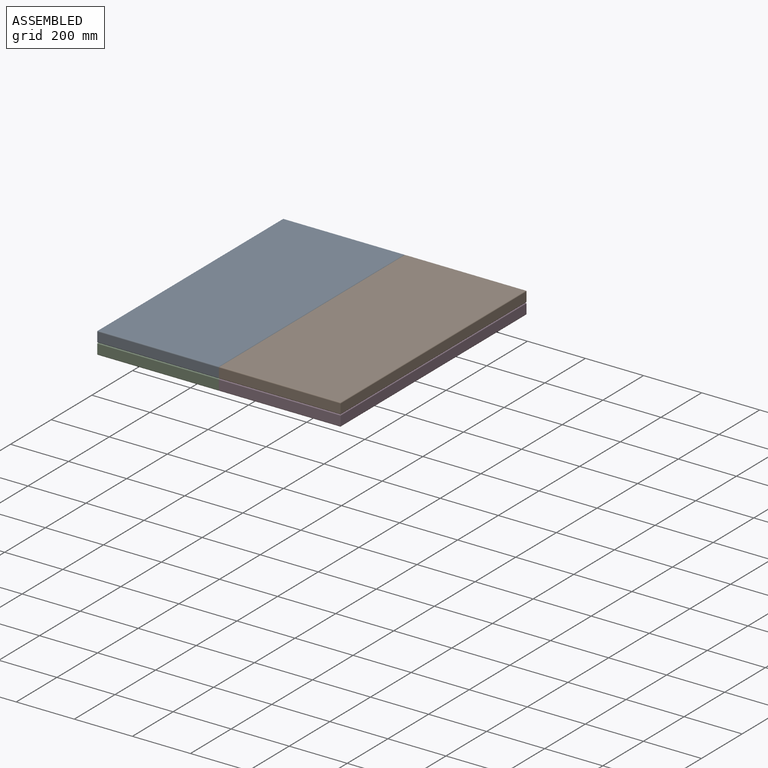
[diagram: assembled view]
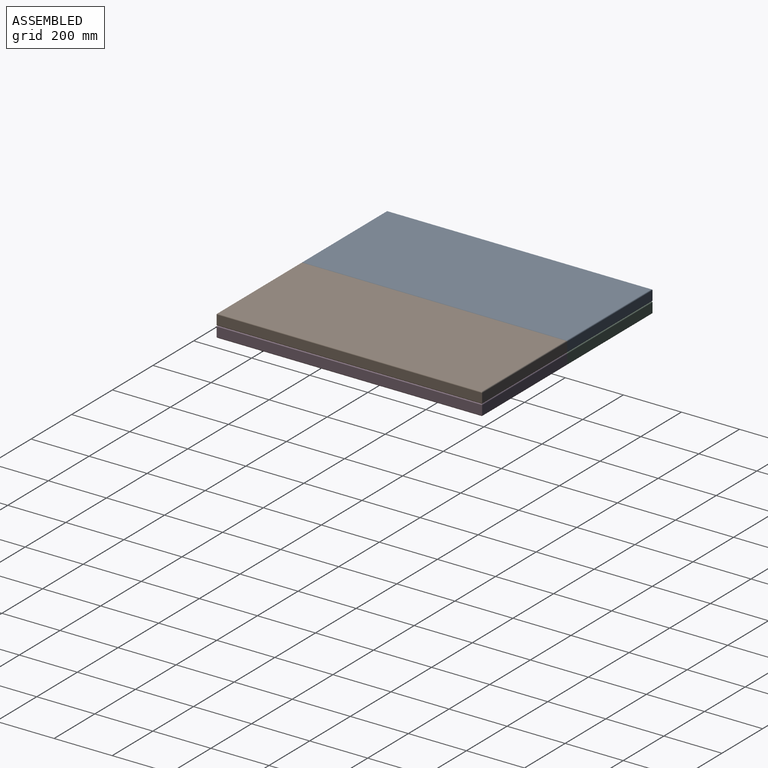
[diagram: assembled view, second angle]
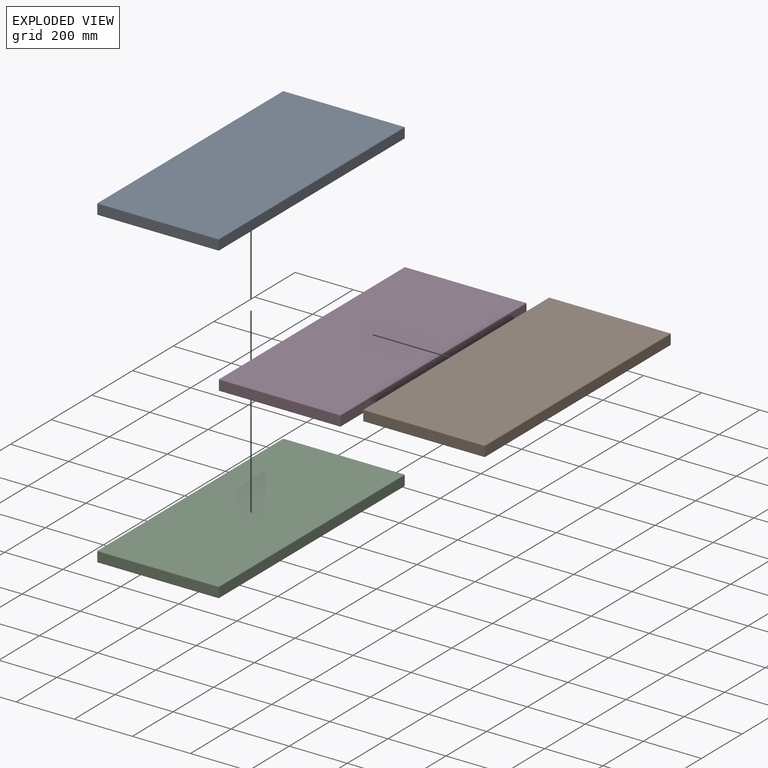
[diagram: exploded view]
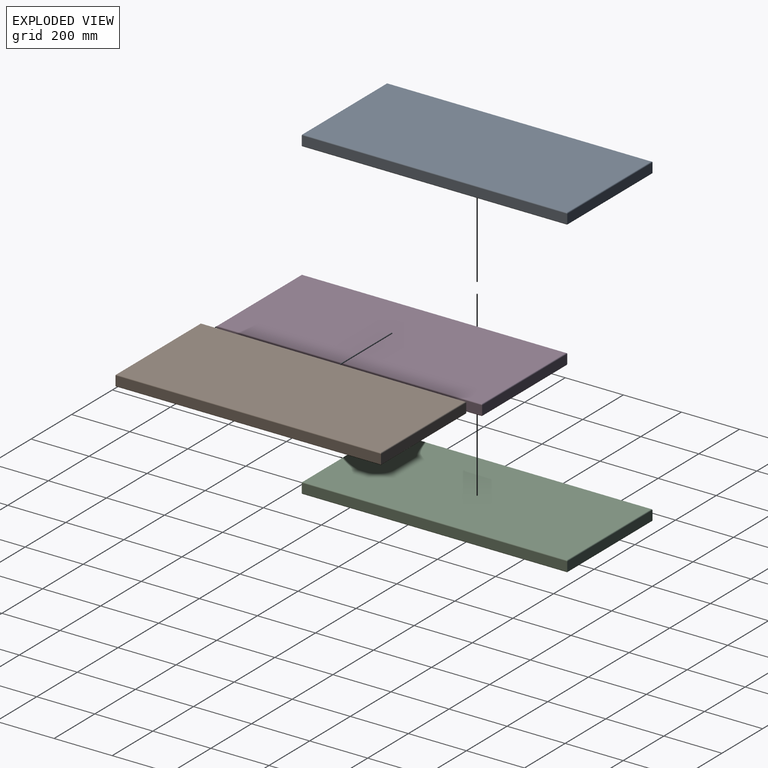
[diagram: exploded view, second angle]
ASSEMBLY  parts=4 mates=3
PART A: 14 faces, bbox 419.1x914.4x38.1 mm
  f0: plane 914.4x31.75mm, normal (-1,0,0), area 29032.2mm2, adj f1,f3,f6,f10
  f1: plane 419.1x31.75mm, normal (0,-1,0), area 13306.4mm2, adj f0,f2,f7,f11
  f2: plane 914.4x31.75mm, normal (1,0,0), area 29032.2mm2, adj f1,f3,f9,f13
  f3: plane 419.1x31.75mm, normal (0,1,0), area 13306.4mm2, adj f0,f2,f8,f12
  f4: plane 908.05x412.75mm, normal (0,0,1), area 374797.6mm2, adj f10,f11,f12,f13
  f5: plane 908.05x412.75mm, normal (0,0,-1), area 374797.6mm2, adj f6,f7,f8,f9
  f6: cylinder r=3.17mm len=914.4mm, axis (0,-1,0), area 4548.9mm2, adj f0,f5,f7,f8
  f7: cylinder r=3.17mm len=419.1mm, axis (1,0,0), area 2078.7mm2, adj f1,f5,f6,f9
  f8: cylinder r=3.17mm len=419.1mm, axis (-1,0,0), area 2078.7mm2, adj f3,f5,f6,f9
  f9: cylinder r=3.17mm len=914.4mm, axis (0,1,0), area 4548.9mm2, adj f2,f5,f7,f8
  f10: cylinder r=3.17mm len=914.4mm, axis (0,1,0), area 4548.9mm2, adj f0,f4,f11,f12
  f11: cylinder r=3.17mm len=419.1mm, axis (-1,0,0), area 2078.7mm2, adj f1,f4,f10,f13
  f12: cylinder r=3.17mm len=419.1mm, axis (1,0,0), area 2078.7mm2, adj f3,f4,f10,f13
  f13: cylinder r=3.17mm len=914.4mm, axis (0,-1,0), area 4548.9mm2, adj f2,f4,f11,f12
PART B: same geometry as A
PART C: same geometry as A
PART D: same geometry as A
PLACE A t=(-123.22,-140.02,57.11)mm
PLACE B t=(295.88,-140.02,57.11)mm
PLACE C t=(-123.22,-140.02,19.01)mm
PLACE D t=(295.88,-140.02,19.01)mm
MATE fastened C.f4 <-> A.f5  axis (0,0,1) through (86.33,317.18,57.11)mm
MATE fastened B.f0 <-> A.f2  axis (-1,0,0) through (295.88,317.18,76.16)mm
MATE fastened B.f5 <-> D.f4  axis (0,0,-1) through (505.43,317.18,57.11)mm
